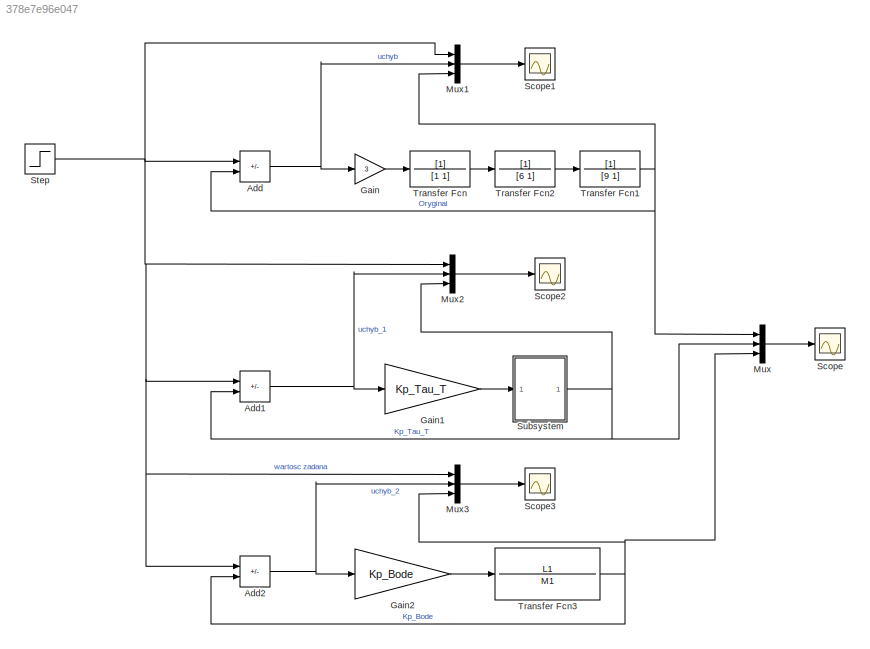
MODEL slx_378e7e96e047
KIND model
CONFIG AbsTol = auto
CONFIG EnableMultiTasking = off
CONFIG FixedStep = auto
CONFIG MaxStep = auto
CONFIG MinStep = auto
CONFIG RelTol = 1e-3
CONFIG SampleTimeConstraint = Unconstrained
CONFIG SolverName = VariableStepAuto
CONFIG StartTime = 0.0
CONFIG StopTime = 150
BLOCK [Sum] Add
  IconShape = rectangular
  Inputs = +-
BLOCK [Sum] Add1
  IconShape = rectangular
  Inputs = +-
BLOCK [Sum] Add2
  IconShape = rectangular
  Inputs = +-
BLOCK [Gain] Gain
  Gain = 3
BLOCK [Gain] Gain1
  Gain = Kp_Tau_T
BLOCK [Gain] Gain2
  Gain = Kp_Bode
BLOCK [Mux] Mux
  DisplayOption = bar
  Inputs = 3
BLOCK [Mux] Mux1
  DisplayOption = bar
  Inputs = 3
BLOCK [Mux] Mux2
  DisplayOption = bar
  Inputs = 3
BLOCK [Mux] Mux3
  DisplayOption = bar
  Inputs = 3
BLOCK [Scope] Scope
  ActiveDisplayYMaximum = 1.6204114652627999
  ActiveDisplayYMinimum = -0.18004571836253325
  Floating = off
  GraphicalSettings = {"Style":{"BackgroundColor":[0.12941176470588237,0.12941176470588237,0.12941176470588237],"AxesColor":[0.07058823529411765,0.07058823529411765,0.07058823529411765],"LabelsColor":[0.8509803921568627,0.8509803921568627,0.8509803921568627],"PreserveColors":false,"Visible":[true,true,true],"LineStyle":["-","-","-"],"LineWidth":[1.5,1.5,1.5],"BarWidth":[0.9,0.9,0.9],"LineColor":["auto","auto","auto"],"...<+2232ch>
  MultipleDisplayCache = [{"MaxYLimMag":1.6204114652627999,"MaxYLimReal":1.6204114652627999,"MinYLimMag":0,"MinYLimReal":-0.18004571836253325,"PlotAsMagnitudePhase":false,"ShowGrid":true,"ShowLegend":true,"Title":"%<SignalLabel>","YLabel":""}]  <repeated x3 — deduplicated; at blocks: Scope, Scope1, Scope2>
  NumInputPorts = 1
  ScopeFrameLocation = window
  ShowLegend = on
  WasSavedAsWebScope = on
  WindowPosition = [507.000000,274.000000,847.000000,641.000000,]
BLOCK [Scope] Scope1
  ActiveDisplayYMaximum = 1.6204114652627999
  ActiveDisplayYMinimum = -0.18004571836253325
  DataLoggingVariableName = ScopeData1
  Floating = off
  GraphicalSettings = {"Style":{"BackgroundColor":[0.12941176470588237,0.12941176470588237,0.12941176470588237],"AxesColor":[0.07058823529411765,0.07058823529411765,0.07058823529411765],"LabelsColor":[0.8509803921568627,0.8509803921568627,0.8509803921568627],"PreserveColors":false,"Visible":[true,true,true],"LineStyle":["-","-","-"],"LineWidth":[1.5,1.5,1.5],"BarWidth":[0.9,0.9,0.9],"LineColor":["auto","auto","auto"],"...<+2240ch>
  NumInputPorts = 1
  ScopeFrameLocation = window
  ShowLegend = on
  WasSavedAsWebScope = on
  WindowPosition = [613.000000,305.000000,769.000000,670.000000,]
BLOCK [Scope] Scope2
  ActiveDisplayYMaximum = 1.6204114652627999
  ActiveDisplayYMinimum = -0.18004571836253325
  DataLoggingVariableName = ScopeData2
  Floating = off
  GraphicalSettings = {"Style":{"BackgroundColor":[0.12941176470588237,0.12941176470588237,0.12941176470588237],"AxesColor":[0.07058823529411765,0.07058823529411765,0.07058823529411765],"LabelsColor":[0.8509803921568627,0.8509803921568627,0.8509803921568627],"PreserveColors":false,"Visible":[true,true,true],"LineStyle":["-","-","-"],"LineWidth":[1.5,1.5,1.5],"BarWidth":[0.9,0.9,0.9],"LineColor":["auto","auto","auto"],"...<+2560ch>
  NumInputPorts = 1
  ScopeFrameLocation = window
  ShowLegend = on
  WasSavedAsWebScope = on
  WindowPosition = [515.000000,189.000000,769.000000,670.000000,]
BLOCK [Scope] Scope3
  ActiveDisplayYMaximum = 2.8222475639378457
  ActiveDisplayYMinimum = -0.92077361092448817
  DataLoggingVariableName = ScopeData3
  Floating = off
  GraphicalSettings = {"Style":{"BackgroundColor":[0.12941176470588237,0.12941176470588237,0.12941176470588237],"AxesColor":[0.07058823529411765,0.07058823529411765,0.07058823529411765],"LabelsColor":[0.8509803921568627,0.8509803921568627,0.8509803921568627],"PreserveColors":false,"Visible":[true,true,true],"LineStyle":["-","-","-"],"LineWidth":[1.5,1.5,1.5],"BarWidth":[0.9,0.9,0.9],"LineColor":["auto","auto","auto"],"...<+2240ch>
  MultipleDisplayCache = [{"MaxYLimMag":1.6204114652627999,"MaxYLimReal":2.8222475639378457,"MinYLimMag":0,"MinYLimReal":-0.92077361092448817,"PlotAsMagnitudePhase":false,"ShowGrid":true,"ShowLegend":true,"Title":"%<SignalLabel>","YLabel":""}]
  NumInputPorts = 1
  ScopeFrameLocation = window
  ShowLegend = on
  WasSavedAsWebScope = on
  WindowPosition = [680.000000,339.000000,769.000000,670.000000,]
BLOCK [Step] Step
  SampleTime = 0
  Time = 0
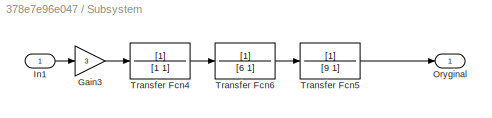
BLOCK [SubSystem] Subsystem
BLOCK [Gain] Subsystem/Gain3
  Gain = 3
BLOCK [Inport] Subsystem/In1
BLOCK [Outport] Subsystem/Oryginal
BLOCK [TransferFcn] Subsystem/Transfer Fcn4
  Denominator = [1 1]
BLOCK [TransferFcn] Subsystem/Transfer Fcn5
  Denominator = [9 1]
BLOCK [TransferFcn] Subsystem/Transfer Fcn6
  Denominator = [6 1]
BLOCK [TransferFcn] Transfer Fcn
  Denominator = [1 1]
BLOCK [TransferFcn] Transfer Fcn1
  Denominator = [9 1]
BLOCK [TransferFcn] Transfer Fcn2
  Denominator = [6 1]
BLOCK [TransferFcn] Transfer Fcn3
  Denominator = M1
  Numerator = L1
NET Add1:1 -> Gain1:1, Mux2:2
NET Add2:1 -> Gain2:1, Mux3:2
NET Add:1 -> Gain:1, Mux1:2
LINE Gain1:1 -> Subsystem:1
LINE Gain2:1 -> Transfer Fcn3:1
LINE Gain:1 -> Transfer Fcn:1
LINE Mux1:1 -> Scope1:1
LINE Mux2:1 -> Scope2:1
LINE Mux3:1 -> Scope3:1
LINE Mux:1 -> Scope:1
NET Step:1 -> Add1:1, Add2:1, Add:1, Mux1:1, Mux2:1, Mux3:1
LINE Subsystem/Gain3:1 -> Subsystem/Transfer Fcn4:1
LINE Subsystem/In1:1 -> Subsystem/Gain3:1
LINE Subsystem/Transfer Fcn4:1 -> Subsystem/Transfer Fcn6:1
LINE Subsystem/Transfer Fcn5:1 -> Subsystem/Oryginal:1
LINE Subsystem/Transfer Fcn6:1 -> Subsystem/Transfer Fcn5:1
NET Subsystem:1 -> Add1:2, Mux2:3, Mux:2
NET Transfer Fcn1:1 -> Add:2, Mux1:3, Mux:1
LINE Transfer Fcn2:1 -> Transfer Fcn1:1
NET Transfer Fcn3:1 -> Add2:2, Mux3:3, Mux:3
LINE Transfer Fcn:1 -> Transfer Fcn2:1
note: NET lines group one-source signal fan-out (src -> all destinations, sorted); 1:1 wires keep LINE
